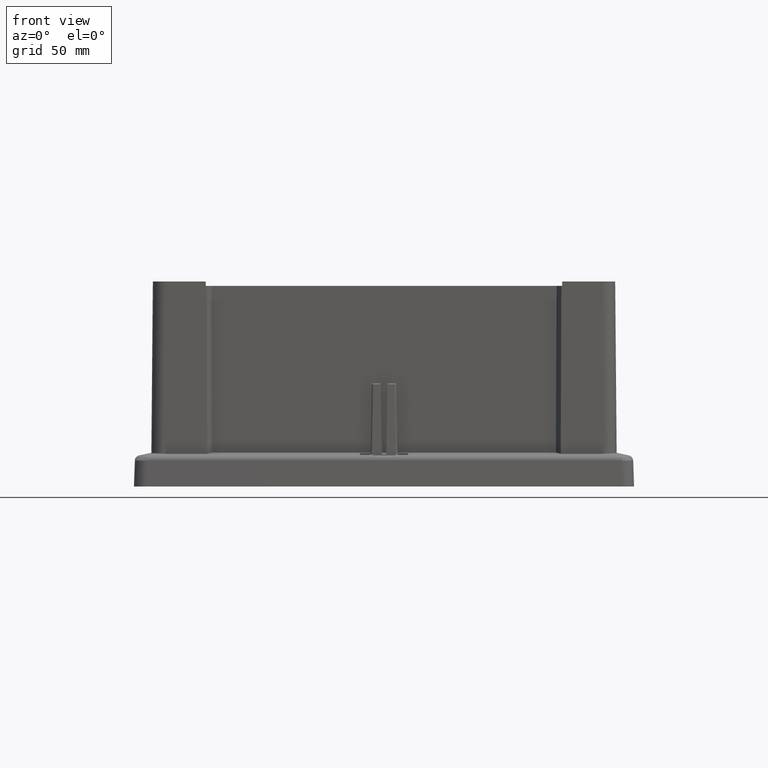
[diagram: clean part render]
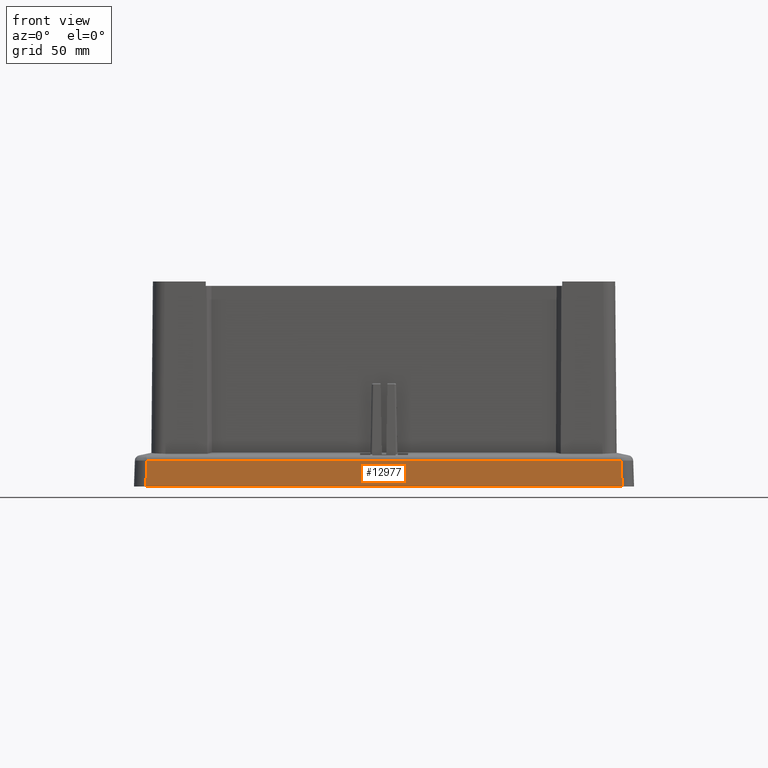
[diagram: same view with one face highlighted and labeled with its STEP entity id]
A machine part, front view. The second image highlights one B-rep face of the part: STEP entity #12977.
In plain terms, the highlighted planar face has unit normal (0, -0.9994, 0.0349).
Its self-contained STEP definition (entity closure, byte-faithful):
#6708 = CARTESIAN_POINT ( 'NONE',  ( 84.48491023633894800, -113.5815597849439300, 11.98255998210334100 ) ) ;
#6850 = CARTESIAN_POINT ( 'NONE',  ( 84.90335045139497100, -114.0000000000000000, 2.168404344971008900E-016 ) ) ;
#6902 = CARTESIAN_POINT ( 'NONE',  ( 82.50360757155155500, -113.5792714759190100, 12.04808857893015200 ) ) ;
#6903 = B_SPLINE_CURVE_WITH_KNOTS ( 'NONE', 3,
 ( #6955, #6954, #6953, #6952, #6951, #6950, #6949, #6948, #6947 ),
 .UNSPECIFIED., .F., .F.,
 ( 4, 1, 1, 1, 1, 1, 4 ),
 ( 0.0000000000000000000, 0.0003990920746655908600, 0.0007680806122277609800, 0.001109060186023066600, 0.001424160688339051000, 0.001715110942050237000, 0.001982643155825625500 ),
 .UNSPECIFIED. ) ;
#6904 = DIRECTION ( 'NONE',  ( 0.03487826274237615400, -0.03487826274237499500, -0.9987827659587181800 ) ) ;
#6905 = VECTOR ( 'NONE', #6904, 1000.000000000000000 ) ;
#6906 = CARTESIAN_POINT ( 'NONE',  ( 84.69413034386694500, -113.7907798924719600, 5.991279991051668800 ) ) ;
#6907 = LINE ( 'NONE', #6906, #6905 ) ;
#6947 = CARTESIAN_POINT ( 'NONE',  ( 82.50360757155155500, -113.5792714759190100, 12.04808857893015200 ) ) ;
#6948 = CARTESIAN_POINT ( 'NONE',  ( 82.59278876408629300, -113.5792737765662700, 12.04802269701240500 ) ) ;
#6949 = CARTESIAN_POINT ( 'NONE',  ( 82.77894506638351400, -113.5793118486800800, 12.04693245431859200 ) ) ;
#6950 = CARTESIAN_POINT ( 'NONE',  ( 83.07010317934123100, -113.5794890243575400, 12.04185880674305800 ) ) ;
#6951 = CARTESIAN_POINT ( 'NONE',  ( 83.38566712719047300, -113.5797886028849500, 12.03328000015405900 ) ) ;
#6952 = CARTESIAN_POINT ( 'NONE',  ( 83.72713325730909200, -113.5802242624928500, 12.02080434127679900 ) ) ;
#6953 = CARTESIAN_POINT ( 'NONE',  ( 84.09644401116277400, -113.5808106486791000, 12.00401243792759400 ) ) ;
#6954 = CARTESIAN_POINT ( 'NONE',  ( 84.35210071609508000, -113.5812898863116900, 11.99028886769622200 ) ) ;
#6955 = CARTESIAN_POINT ( 'NONE',  ( 84.48491023633894800, -113.5815597849439300, 11.98255998210334100 ) ) ;
#8284 = CARTESIAN_POINT ( 'NONE',  ( -135.0849102363389100, -113.5815597849439300, 11.98255998210334100 ) ) ;
#8383 = B_SPLINE_CURVE_WITH_KNOTS ( 'NONE', 3,
 ( #8425, #8424, #8472, #8471, #8470, #8469, #8468, #8467, #8466 ),
 .UNSPECIFIED., .F., .F.,
 ( 4, 1, 1, 1, 1, 1, 4 ),
 ( 0.0000000000000000000, 0.0003990920746655908600, 0.0007680806122277748600, 0.001109060186023080400, 0.001424160688339078700, 0.001715110942050237000, 0.001982643155825639400 ),
 .UNSPECIFIED. ) ;
#8390 = DIRECTION ( 'NONE',  ( 1.000000000000000000, 0.0000000000000000000, 0.0000000000000000000 ) ) ;
#8391 = VECTOR ( 'NONE', #8390, 1000.000000000000000 ) ;
#8392 = CARTESIAN_POINT ( 'NONE',  ( -25.29999999999998300, -113.5792714759190100, 12.04808857893015200 ) ) ;
#8393 = LINE ( 'NONE', #8392, #8391 ) ;
#8423 = CARTESIAN_POINT ( 'NONE',  ( -135.2941303438669500, -113.7907798924719600, 5.991279991051670500 ) ) ;
#8424 = CARTESIAN_POINT ( 'NONE',  ( -134.9521007160950900, -113.5812898863117200, 11.99028886769622600 ) ) ;
#8425 = CARTESIAN_POINT ( 'NONE',  ( -135.0849102363389100, -113.5815597849439300, 11.98255998210334100 ) ) ;
#8454 = DIRECTION ( 'NONE',  ( 1.000000000000000000, 0.0000000000000000000, 0.0000000000000000000 ) ) ;
#8455 = VECTOR ( 'NONE', #8454, 1000.000000000000000 ) ;
#8456 = CARTESIAN_POINT ( 'NONE',  ( -25.30000000000000400, -114.0000000000000000, 0.0000000000000000000 ) ) ;
#8457 = DIRECTION ( 'NONE',  ( 0.0000000000000000000, -0.03489949670250096200, -0.9993908270190956500 ) ) ;
#8458 = DIRECTION ( 'NONE',  ( 0.0000000000000000000, -0.9993908270190957600, 0.03489949670250096900 ) ) ;
#8459 = AXIS2_PLACEMENT_3D ( 'NONE', #8461, #8458, #8457 ) ;
#8460 = LINE ( 'NONE', #8456, #8455 ) ;
#8461 = CARTESIAN_POINT ( 'NONE',  ( 146.3549254873074400, -114.0000000000000000, 0.0000000000000000000 ) ) ;
#8462 = PLANE ( 'NONE',  #8459 ) ;
#8463 = FACE_OUTER_BOUND ( 'NONE', #12978, .T. ) ;
#8464 = DIRECTION ( 'NONE',  ( -0.03487826274237500200, -0.03487826274237500200, -0.9987827659587181800 ) ) ;
#8465 = VECTOR ( 'NONE', #8464, 1000.000000000000100 ) ;
#8466 = CARTESIAN_POINT ( 'NONE',  ( -133.1036075715515200, -113.5792714759190100, 12.04808857893015200 ) ) ;
#8467 = CARTESIAN_POINT ( 'NONE',  ( -133.1927887640862300, -113.5792737765662700, 12.04802269701240100 ) ) ;
#8468 = CARTESIAN_POINT ( 'NONE',  ( -133.3789450663835200, -113.5793118486801200, 12.04693245431859500 ) ) ;
#8469 = CARTESIAN_POINT ( 'NONE',  ( -133.6701031793412300, -113.5794890243575400, 12.04185880674305900 ) ) ;
#8470 = CARTESIAN_POINT ( 'NONE',  ( -133.9856671271904500, -113.5797886028849500, 12.03328000015405800 ) ) ;
#8471 = CARTESIAN_POINT ( 'NONE',  ( -134.3271332573090400, -113.5802242624928900, 12.02080434127679900 ) ) ;
#8472 = CARTESIAN_POINT ( 'NONE',  ( -134.6964440111626700, -113.5808106486790500, 12.00401243792759200 ) ) ;
#8473 = CARTESIAN_POINT ( 'NONE',  ( -133.1036075715515200, -113.5792714759190100, 12.04808857893015200 ) ) ;
#8474 = LINE ( 'NONE', #8423, #8465 ) ;
#8558 = CARTESIAN_POINT ( 'NONE',  ( -135.5033504513949700, -114.0000000000000000, 0.0000000000000000000 ) ) ;
#12287 = VERTEX_POINT ( 'NONE', #6708 ) ;
#12322 = VERTEX_POINT ( 'NONE', #6850 ) ;
#12351 = EDGE_CURVE ( 'NONE', #12287, #12322, #6907, .T. ) ;
#12353 = EDGE_CURVE ( 'NONE', #12287, #12354, #6903, .T. ) ;
#12354 = VERTEX_POINT ( 'NONE', #6902 ) ;
#12910 = VERTEX_POINT ( 'NONE', #8284 ) ;
#12963 = EDGE_CURVE ( 'NONE', #12974, #12354, #8393, .T. ) ;
#12973 = EDGE_CURVE ( 'NONE', #12910, #12974, #8383, .T. ) ;
#12974 = VERTEX_POINT ( 'NONE', #8473 ) ;
#12976 = EDGE_CURVE ( 'NONE', #12910, #13054, #8474, .T. ) ;
#12977 = ADVANCED_FACE ( 'NONE', ( #8463 ), #8462, .T. ) ;
#12978 = EDGE_LOOP ( 'NONE', ( #12979, #12981, #12982, #12983, #13038, #13039 ) ) ;
#12979 = ORIENTED_EDGE ( 'NONE', *, *, #12980, .T. ) ;
#12980 = EDGE_CURVE ( 'NONE', #13054, #12322, #8460, .T. ) ;
#12981 = ORIENTED_EDGE ( 'NONE', *, *, #12351, .F. ) ;
#12982 = ORIENTED_EDGE ( 'NONE', *, *, #12353, .T. ) ;
#12983 = ORIENTED_EDGE ( 'NONE', *, *, #12963, .F. ) ;
#13038 = ORIENTED_EDGE ( 'NONE', *, *, #12973, .F. ) ;
#13039 = ORIENTED_EDGE ( 'NONE', *, *, #12976, .T. ) ;
#13054 = VERTEX_POINT ( 'NONE', #8558 ) ;